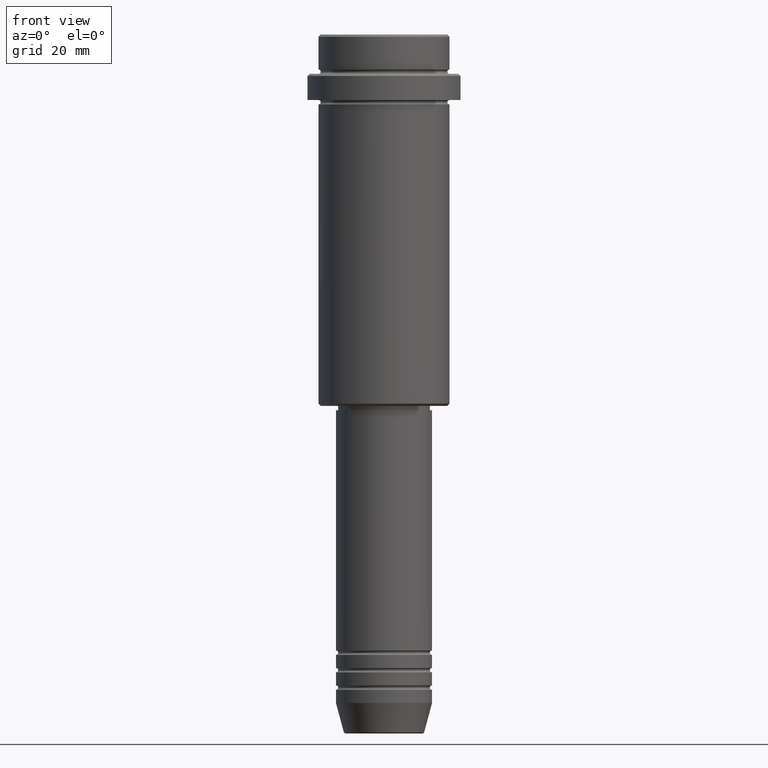
[diagram: clean part render]
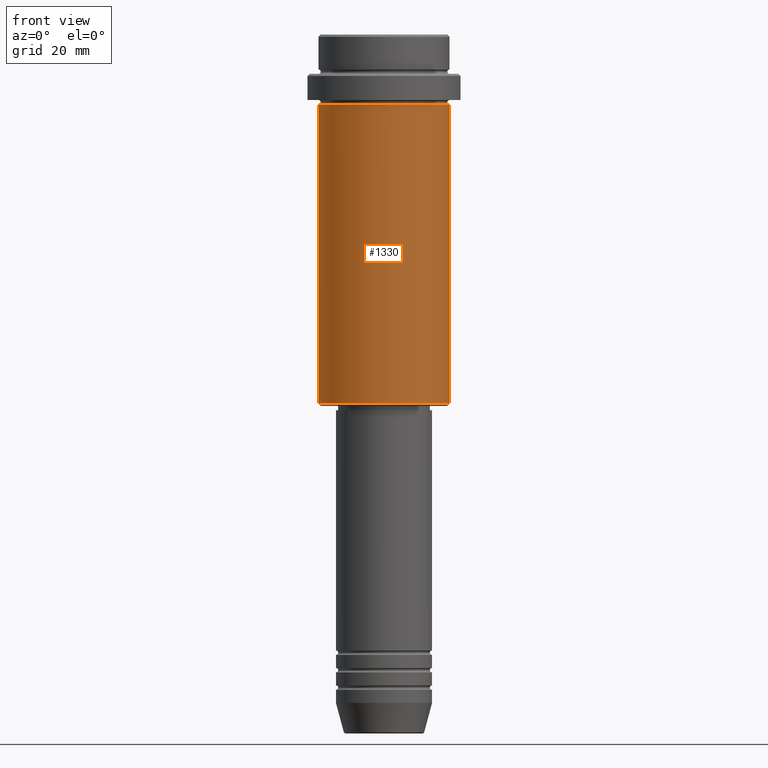
[diagram: same view with one face highlighted and labeled with its STEP entity id]
A machine part, front view. The second image highlights one B-rep face of the part: STEP entity #1330.
In plain terms, the highlighted cylindrical surface (partial cylindrical patch) has radius 15 mm, axis along (-0, -0, 1).
Its self-contained STEP definition (entity closure, byte-faithful):
#32 = CARTESIAN_POINT ( 'NONE',  ( -15.00000000000000000, 1.836970198721029589E-15, -84.49999999999998579 ) ) ;
#246 = DIRECTION ( 'NONE',  ( -1.000000000000000000, 0.000000000000000000, 0.000000000000000000 ) ) ;
#253 = EDGE_CURVE ( 'NONE', #1410, #1134, #1018, .T. ) ;
#258 = DIRECTION ( 'NONE',  ( -0.000000000000000000, -0.000000000000000000, 1.000000000000000000 ) ) ;
#310 = VERTEX_POINT ( 'NONE', #1319 ) ;
#312 = CARTESIAN_POINT ( 'NONE',  ( 0.000000000000000000, 0.000000000000000000, -16.00000000000000000 ) ) ;
#317 = CARTESIAN_POINT ( 'NONE',  ( -15.00000000000000355, 1.836970198721029983E-15, -16.00000000000000000 ) ) ;
#394 = LINE ( 'NONE', #1227, #1021 ) ;
#405 = DIRECTION ( 'NONE',  ( -0.000000000000000000, -0.000000000000000000, 1.000000000000000000 ) ) ;
#432 = DIRECTION ( 'NONE',  ( 1.000000000000000000, 0.000000000000000000, 0.000000000000000000 ) ) ;
#449 = DIRECTION ( 'NONE',  ( -0.000000000000000000, -0.000000000000000000, 1.000000000000000000 ) ) ;
#475 = EDGE_CURVE ( 'NONE', #1078, #310, #394, .T. ) ;
#489 = CARTESIAN_POINT ( 'NONE',  ( 15.00000000000000000, 0.000000000000000000, -84.49999999999998579 ) ) ;
#511 = ORIENTED_EDGE ( 'NONE', *, *, #1093, .F. ) ;
#540 = DIRECTION ( 'NONE',  ( 1.000000000000000000, 0.000000000000000000, 0.000000000000000000 ) ) ;
#565 = DIRECTION ( 'NONE',  ( -0.000000000000000000, -0.000000000000000000, 1.000000000000000000 ) ) ;
#664 = CARTESIAN_POINT ( 'NONE',  ( 0.000000000000000000, 0.000000000000000000, 0.000000000000000000 ) ) ;
#679 = DIRECTION ( 'NONE',  ( -0.000000000000000000, -0.000000000000000000, 1.000000000000000000 ) ) ;
#727 = VECTOR ( 'NONE', #258, 1000.000000000000000 ) ;
#794 = CARTESIAN_POINT ( 'NONE',  ( -15.00000000000000000, 1.836970198721029589E-15, 0.000000000000000000 ) ) ;
#854 = EDGE_CURVE ( 'NONE', #1410, #1078, #1403, .T. ) ;
#871 = CYLINDRICAL_SURFACE ( 'NONE', #872, 15.00000000000000000 ) ;
#872 = AXIS2_PLACEMENT_3D ( 'NONE', #664, #565, #540 ) ;
#874 = CARTESIAN_POINT ( 'NONE',  ( 0.000000000000000000, 0.000000000000000000, -84.49999999999998579 ) ) ;
#1018 = LINE ( 'NONE', #794, #727 ) ;
#1021 = VECTOR ( 'NONE', #449, 1000.000000000000000 ) ;
#1077 = FACE_OUTER_BOUND ( 'NONE', #1276, .T. ) ;
#1078 = VERTEX_POINT ( 'NONE', #489 ) ;
#1093 = EDGE_CURVE ( 'NONE', #1134, #310, #1379, .T. ) ;
#1129 = ORIENTED_EDGE ( 'NONE', *, *, #475, .T. ) ;
#1134 = VERTEX_POINT ( 'NONE', #317 ) ;
#1157 = ORIENTED_EDGE ( 'NONE', *, *, #253, .F. ) ;
#1227 = CARTESIAN_POINT ( 'NONE',  ( 15.00000000000000000, 0.000000000000000000, 0.000000000000000000 ) ) ;
#1276 = EDGE_LOOP ( 'NONE', ( #1157, #1383, #1129, #511 ) ) ;
#1309 = AXIS2_PLACEMENT_3D ( 'NONE', #874, #679, #246 ) ;
#1319 = CARTESIAN_POINT ( 'NONE',  ( 15.00000000000000178, 0.000000000000000000, -16.00000000000000000 ) ) ;
#1330 = ADVANCED_FACE ( 'NONE', ( #1077 ), #871, .T. ) ;
#1354 = AXIS2_PLACEMENT_3D ( 'NONE', #312, #405, #432 ) ;
#1379 = CIRCLE ( 'NONE', #1354, 15.00000000000000178 ) ;
#1383 = ORIENTED_EDGE ( 'NONE', *, *, #854, .T. ) ;
#1403 = CIRCLE ( 'NONE', #1309, 15.00000000000000000 ) ;
#1410 = VERTEX_POINT ( 'NONE', #32 ) ;